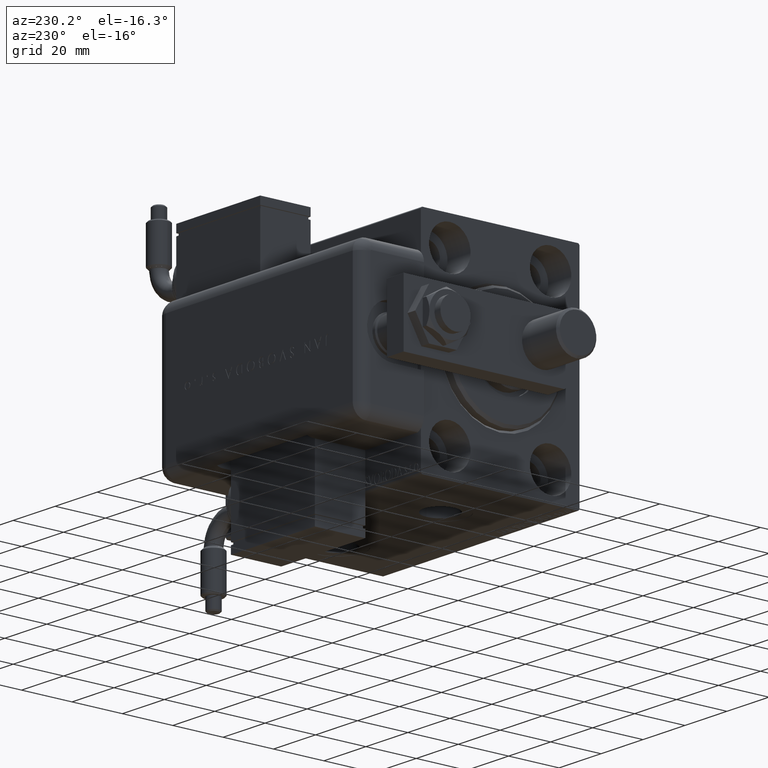
[diagram: clean part render]
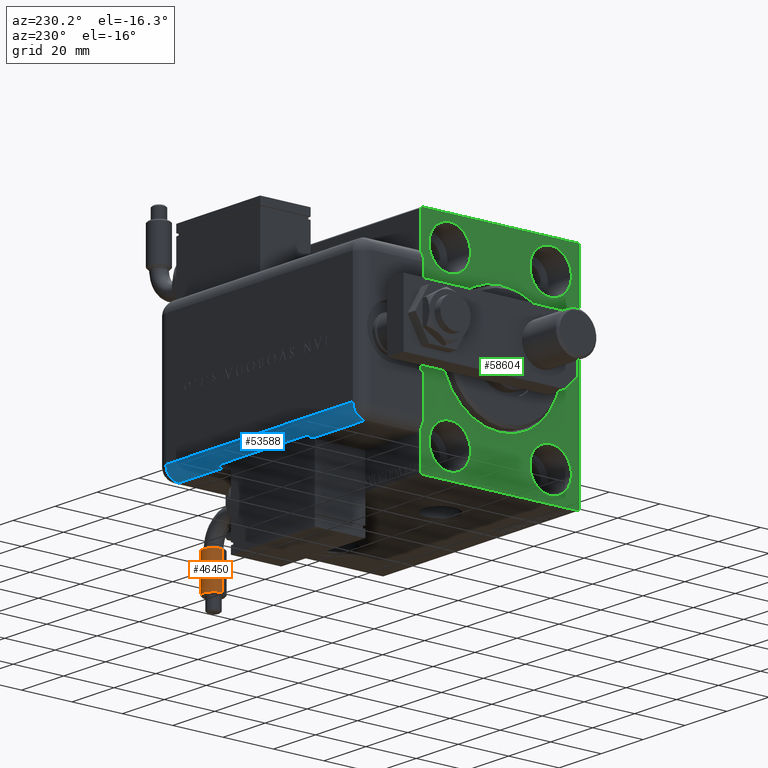
[diagram: same view with three faces highlighted in distinct colors, each labeled with its STEP entity id]
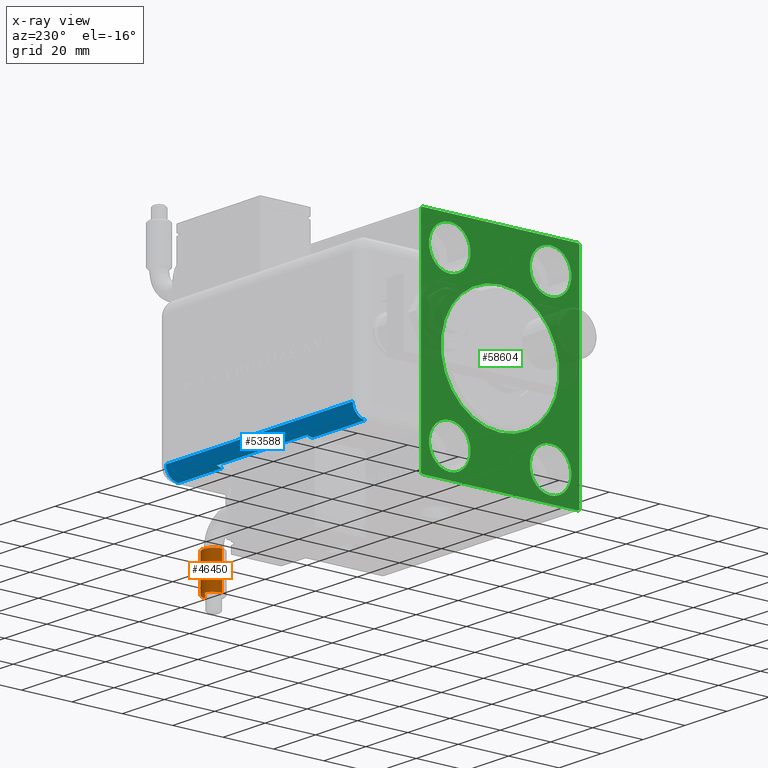
[diagram: x-ray of the same camera — body ghosted, the three highlighted faces saturated]
A machine part, auxiliary view with three faces highlighted in distinct colors.
The next image is the same camera in x-ray (body ghosted, the three faces saturated) — at least one of them is partly hidden behind the body in this view.
Their STEP definitions:

[orange] entity #46450 — the highlighted cylindrical surface (edge-blend (fillet) strip) has radius 4 mm, axis along (0, 0, 1).
#979 = VECTOR ( 'NONE', #33367, 1000.000000000000114 ) ;
#1163 = VECTOR ( 'NONE', #17783, 1000.000000000000114 ) ;
#4042 = CARTESIAN_POINT ( 'NONE',  ( -36.25911726071100105, -24.50725228524562738, 4.898587196589407898E-16 ) ) ;
#4347 = LINE ( 'NONE', #4042, #1163 ) ;
#4790 = CARTESIAN_POINT ( 'NONE',  ( -44.25912096167365917, -24.00731150416889648, 0.000000000000000000 ) ) ;
#5531 = VERTEX_POINT ( 'NONE', #4790 ) ;
#6105 = EDGE_LOOP ( 'NONE', ( #39704, #38530, #15742, #48672 ) ) ;
#6633 = EDGE_CURVE ( 'NONE', #5531, #32824, #41706, .T. ) ;
#6852 = CARTESIAN_POINT ( 'NONE',  ( -40.25922459487507155, -10.00728189509763411, 0.000000000000000000 ) ) ;
#11316 = VERTEX_POINT ( 'NONE', #23168 ) ;
#14317 = LINE ( 'NONE', #17760, #979 ) ;
#15742 = ORIENTED_EDGE ( 'NONE', *, *, #18131, .T. ) ;
#17760 = CARTESIAN_POINT ( 'NONE',  ( -44.25911726049180572, -24.50731150415523629, 0.000000000000000000 ) ) ;
#17783 = DIRECTION ( 'NONE',  ( -7.402363701086711600E-06, 0.9999999999726024713, -0.000000000000000000 ) ) ;
#18131 = EDGE_CURVE ( 'NONE', #33545, #11316, #25160, .T. ) ;
#19700 = DIRECTION ( 'NONE',  ( -7.402363694230904005E-06, 0.9999999999726025823, 0.000000000000000000 ) ) ;
#20299 = EDGE_CURVE ( 'NONE', #32824, #33545, #4347, .T. ) ;
#23168 = CARTESIAN_POINT ( 'NONE',  ( -44.25922459476547033, -10.00731150455246699, 0.000000000000000000 ) ) ;
#23446 = CARTESIAN_POINT ( 'NONE',  ( -36.25922459498466566, -10.00725228564280300, 4.898587196589407898E-16 ) ) ;
#23595 = DIRECTION ( 'NONE',  ( -7.402363701086712447E-06, 0.9999999999726025823, -0.000000000000000000 ) ) ;
#25160 = CIRCLE ( 'NONE', #56069, 3.999999999999993339 ) ;
#25901 = DIRECTION ( 'NONE',  ( 0.9999999999726025823, 7.402363708108884937E-06, 0.000000000000000000 ) ) ;
#29673 = DIRECTION ( 'NONE',  ( 0.9999999999726025823, 7.402363694231097129E-06, 0.000000000000000000 ) ) ;
#31727 = CARTESIAN_POINT ( 'NONE',  ( -40.25911726060140694, -24.50728189470043006, 0.000000000000000000 ) ) ;
#32646 = FACE_OUTER_BOUND ( 'NONE', #6105, .T. ) ;
#32824 = VERTEX_POINT ( 'NONE', #41100 ) ;
#32961 = CYLINDRICAL_SURFACE ( 'NONE', #42553, 3.999999999999993339 ) ;
#33367 = DIRECTION ( 'NONE',  ( -7.402363701086711600E-06, 0.9999999999726024713, -0.000000000000000000 ) ) ;
#33545 = VERTEX_POINT ( 'NONE', #23446 ) ;
#36178 = DIRECTION ( 'NONE',  ( 7.402363708109615079E-06, -0.9999999999726024713, -0.000000000000000000 ) ) ;
#38530 = ORIENTED_EDGE ( 'NONE', *, *, #20299, .T. ) ;
#39704 = ORIENTED_EDGE ( 'NONE', *, *, #6633, .T. ) ;
#41100 = CARTESIAN_POINT ( 'NONE',  ( -36.25912096189284739, -24.00725228525934440, 4.898587196589407898E-16 ) ) ;
#41706 = CIRCLE ( 'NONE', #47687, 3.999999999999993339 ) ;
#42553 = AXIS2_PLACEMENT_3D ( 'NONE', #31727, #23595, #61064 ) ;
#46450 = ADVANCED_FACE ( 'NONE', ( #32646 ), #32961, .T. ) ;
#47687 = AXIS2_PLACEMENT_3D ( 'NONE', #53399, #19700, #29673 ) ;
#48672 = ORIENTED_EDGE ( 'NONE', *, *, #59235, .F. ) ;
#53399 = CARTESIAN_POINT ( 'NONE',  ( -40.25912096178325328, -24.00728189471412222, 0.000000000000000000 ) ) ;
#56069 = AXIS2_PLACEMENT_3D ( 'NONE', #6852, #36178, #25901 ) ;
#59235 = EDGE_CURVE ( 'NONE', #5531, #11316, #14317, .T. ) ;
#61064 = DIRECTION ( 'NONE',  ( -0.9999999999726025823, -7.402363701169991033E-06, 0.000000000000000000 ) ) ;

[blue] entity #53588 — the highlighted cylindrical surface (edge-blend (fillet) strip) has radius 5 mm, axis along (1, -0, -0).
#1024 = VERTEX_POINT ( 'NONE', #43393 ) ;
#2253 = DIRECTION ( 'NONE',  ( -0.000000000000000000, -0.000000000000000000, 1.000000000000000000 ) ) ;
#5525 = DIRECTION ( 'NONE',  ( -0.000000000000000000, -0.000000000000000000, 1.000000000000000000 ) ) ;
#5794 = AXIS2_PLACEMENT_3D ( 'NONE', #12651, #12036, #55114 ) ;
#6598 = DIRECTION ( 'NONE',  ( 0.000000000000000000, -0.000000000000000000, -1.000000000000000000 ) ) ;
#7021 = VECTOR ( 'NONE', #35954, 1000.000000000000000 ) ;
#7842 = AXIS2_PLACEMENT_3D ( 'NONE', #25027, #6598, #54356 ) ;
#10909 = ORIENTED_EDGE ( 'NONE', *, *, #13045, .T. ) ;
#11496 = CARTESIAN_POINT ( 'NONE',  ( -28.99999999999999645, 20.79999999999998295, 94.00000000000000000 ) ) ;
#12036 = DIRECTION ( 'NONE',  ( 0.000000000000000000, 0.000000000000000000, -1.000000000000000000 ) ) ;
#12112 = CARTESIAN_POINT ( 'NONE',  ( -23.99999999999999645, 25.79999999999998295, 94.00000000000000000 ) ) ;
#12559 = CARTESIAN_POINT ( 'NONE',  ( -23.99999999999999645, 25.79999999999998295, 5.000000000000004441 ) ) ;
#12651 = CARTESIAN_POINT ( 'NONE',  ( -23.99999999999999645, 20.79999999999998295, 94.00000000000000000 ) ) ;
#12736 = DIRECTION ( 'NONE',  ( -0.000000000000000000, -0.000000000000000000, 1.000000000000000000 ) ) ;
#13045 = EDGE_CURVE ( 'NONE', #27261, #56136, #21987, .T. ) ;
#13827 = VECTOR ( 'NONE', #12736, 1000.000000000000000 ) ;
#13894 = EDGE_CURVE ( 'NONE', #1024, #56136, #42111, .T. ) ;
#14936 = EDGE_CURVE ( 'NONE', #34326, #39249, #50965, .T. ) ;
#16082 = CARTESIAN_POINT ( 'NONE',  ( -28.48998886412872267, 22.99999999999998934, 26.00000000000001066 ) ) ;
#16457 = CARTESIAN_POINT ( 'NONE',  ( -23.99999999999999645, 20.79999999999998295, 26.00000000000001066 ) ) ;
#21207 = ORIENTED_EDGE ( 'NONE', *, *, #51318, .F. ) ;
#21987 = CIRCLE ( 'NONE', #37962, 5.000000000000000888 ) ;
#22281 = ORIENTED_EDGE ( 'NONE', *, *, #54890, .F. ) ;
#22839 = ORIENTED_EDGE ( 'NONE', *, *, #14936, .F. ) ;
#24644 = AXIS2_PLACEMENT_3D ( 'NONE', #16457, #58949, #54849 ) ;
#24785 = CIRCLE ( 'NONE', #7842, 5.000000000000000888 ) ;
#25027 = CARTESIAN_POINT ( 'NONE',  ( -23.99999999999999645, 20.79999999999998295, 69.00000000000000000 ) ) ;
#25991 = DIRECTION ( 'NONE',  ( -1.000000000000000000, 0.000000000000000000, 0.000000000000000000 ) ) ;
#27261 = VERTEX_POINT ( 'NONE', #12559 ) ;
#32047 = CARTESIAN_POINT ( 'NONE',  ( -23.99999999999999645, 25.79999999999998295, 94.00000000000000000 ) ) ;
#32780 = ORIENTED_EDGE ( 'NONE', *, *, #44868, .F. ) ;
#33252 = CARTESIAN_POINT ( 'NONE',  ( -28.99999999999999645, 20.79999999999998295, 94.00000000000000000 ) ) ;
#34326 = VERTEX_POINT ( 'NONE', #32047 ) ;
#35825 = CARTESIAN_POINT ( 'NONE',  ( -28.48998886412872267, 22.99999999999998934, 94.00000000000000000 ) ) ;
#35954 = DIRECTION ( 'NONE',  ( 0.000000000000000000, 0.000000000000000000, -1.000000000000000000 ) ) ;
#36432 = LINE ( 'NONE', #35825, #56431 ) ;
#37364 = ORIENTED_EDGE ( 'NONE', *, *, #13894, .F. ) ;
#37962 = AXIS2_PLACEMENT_3D ( 'NONE', #38636, #5525, #47716 ) ;
#38358 = EDGE_CURVE ( 'NONE', #59353, #1024, #47569, .T. ) ;
#38636 = CARTESIAN_POINT ( 'NONE',  ( -23.99999999999999645, 20.79999999999998295, 5.000000000000004441 ) ) ;
#39249 = VERTEX_POINT ( 'NONE', #11496 ) ;
#40188 = VERTEX_POINT ( 'NONE', #60579 ) ;
#42111 = LINE ( 'NONE', #56452, #7021 ) ;
#43393 = CARTESIAN_POINT ( 'NONE',  ( -28.99999999999999645, 20.79999999999998295, 26.00000000000001066 ) ) ;
#44390 = CARTESIAN_POINT ( 'NONE',  ( -28.99999999999999645, 20.79999999999998295, 69.00000000000000000 ) ) ;
#44868 = EDGE_CURVE ( 'NONE', #40188, #59353, #36432, .T. ) ;
#45979 = AXIS2_PLACEMENT_3D ( 'NONE', #55295, #2253, #25991 ) ;
#47569 = CIRCLE ( 'NONE', #24644, 5.000000000000000888 ) ;
#47619 = LINE ( 'NONE', #33252, #47756 ) ;
#47716 = DIRECTION ( 'NONE',  ( -1.000000000000000000, 0.000000000000000000, 0.000000000000000000 ) ) ;
#47756 = VECTOR ( 'NONE', #52605, 1000.000000000000000 ) ;
#48088 = ORIENTED_EDGE ( 'NONE', *, *, #38358, .F. ) ;
#49016 = CARTESIAN_POINT ( 'NONE',  ( -28.99999999999999645, 20.79999999999998295, 5.000000000000004441 ) ) ;
#50965 = CIRCLE ( 'NONE', #45979, 5.000000000000000888 ) ;
#51318 = EDGE_CURVE ( 'NONE', #52713, #40188, #24785, .T. ) ;
#52605 = DIRECTION ( 'NONE',  ( 0.000000000000000000, 0.000000000000000000, -1.000000000000000000 ) ) ;
#52713 = VERTEX_POINT ( 'NONE', #44390 ) ;
#53588 = ADVANCED_FACE ( 'NONE', ( #55422 ), #54504, .T. ) ;
#54356 = DIRECTION ( 'NONE',  ( 1.000000000000000000, 0.000000000000000000, 0.000000000000000000 ) ) ;
#54504 = CYLINDRICAL_SURFACE ( 'NONE', #5794, 5.000000000000000888 ) ;
#54848 = DIRECTION ( 'NONE',  ( 0.000000000000000000, 0.000000000000000000, -1.000000000000000000 ) ) ;
#54849 = DIRECTION ( 'NONE',  ( -1.000000000000000000, 4.163336342344336238E-15, 0.000000000000000000 ) ) ;
#54890 = EDGE_CURVE ( 'NONE', #39249, #52713, #47619, .T. ) ;
#54893 = EDGE_LOOP ( 'NONE', ( #48088, #32780, #21207, #22281, #22839, #56512, #10909, #37364 ) ) ;
#55114 = DIRECTION ( 'NONE',  ( -1.000000000000000000, 0.000000000000000000, 0.000000000000000000 ) ) ;
#55295 = CARTESIAN_POINT ( 'NONE',  ( -23.99999999999999645, 20.79999999999998295, 94.00000000000000000 ) ) ;
#55306 = EDGE_CURVE ( 'NONE', #27261, #34326, #60195, .T. ) ;
#55422 = FACE_OUTER_BOUND ( 'NONE', #54893, .T. ) ;
#56136 = VERTEX_POINT ( 'NONE', #49016 ) ;
#56431 = VECTOR ( 'NONE', #54848, 1000.000000000000000 ) ;
#56452 = CARTESIAN_POINT ( 'NONE',  ( -28.99999999999999645, 20.79999999999998295, 94.00000000000000000 ) ) ;
#56512 = ORIENTED_EDGE ( 'NONE', *, *, #55306, .F. ) ;
#58949 = DIRECTION ( 'NONE',  ( -0.000000000000000000, -0.000000000000000000, 1.000000000000000000 ) ) ;
#59353 = VERTEX_POINT ( 'NONE', #16082 ) ;
#60195 = LINE ( 'NONE', #12112, #13827 ) ;
#60579 = CARTESIAN_POINT ( 'NONE',  ( -28.48998886412872267, 22.99999999999998934, 69.00000000000000000 ) ) ;

[green] entity #58604 — the highlighted planar face has unit normal (1, 0, 0).
#593 = VECTOR ( 'NONE', #11353, 1000.000000000000000 ) ;
#620 = VERTEX_POINT ( 'NONE', #11962 ) ;
#738 = CARTESIAN_POINT ( 'NONE',  ( 0.000000000000000000, -31.50000000000000000, -42.50000000000000711 ) ) ;
#2513 = CARTESIAN_POINT ( 'NONE',  ( 0.000000000000000000, 2.877919977996282293E-15, -23.50000000000001776 ) ) ;
#2928 = DIRECTION ( 'NONE',  ( 0.000000000000000000, 0.000000000000000000, -1.000000000000000000 ) ) ;
#2935 = FACE_BOUND ( 'NONE', #41855, .T. ) ;
#3332 = VERTEX_POINT ( 'NONE', #26093 ) ;
#3372 = EDGE_CURVE ( 'NONE', #620, #19974, #33469, .T. ) ;
#3816 = ORIENTED_EDGE ( 'NONE', *, *, #30631, .F. ) ;
#4709 = VERTEX_POINT ( 'NONE', #9151 ) ;
#5051 = DIRECTION ( 'NONE',  ( 0.000000000000000000, 0.000000000000000000, 1.000000000000000000 ) ) ;
#5349 = DIRECTION ( 'NONE',  ( -1.000000000000000000, 0.000000000000000000, 0.000000000000000000 ) ) ;
#5362 = DIRECTION ( 'NONE',  ( 1.000000000000000000, 0.000000000000000000, 0.000000000000000000 ) ) ;
#5565 = CIRCLE ( 'NONE', #38480, 8.249999999999992895 ) ;
#5720 = CARTESIAN_POINT ( 'NONE',  ( 0.000000000000000000, -19.99999999999999645, 31.50000000000000000 ) ) ;
#6385 = CIRCLE ( 'NONE', #61257, 23.50000000000001776 ) ;
#6431 = CARTESIAN_POINT ( 'NONE',  ( 0.000000000000000000, 31.00000000000000000, 42.50000000000000711 ) ) ;
#6921 = CIRCLE ( 'NONE', #23898, 8.250000000000000000 ) ;
#7566 = CIRCLE ( 'NONE', #39489, 8.250000000000000000 ) ;
#7672 = VERTEX_POINT ( 'NONE', #27808 ) ;
#7925 = DIRECTION ( 'NONE',  ( 0.000000000000000000, 0.000000000000000000, -1.000000000000000000 ) ) ;
#8193 = CARTESIAN_POINT ( 'NONE',  ( 0.000000000000000000, -30.99999999999998579, 42.49999999999999289 ) ) ;
#8495 = ORIENTED_EDGE ( 'NONE', *, *, #51889, .T. ) ;
#9151 = CARTESIAN_POINT ( 'NONE',  ( 0.000000000000000000, 31.50000000000001421, -42.00000000000003553 ) ) ;
#9443 = DIRECTION ( 'NONE',  ( 0.000000000000000000, 0.000000000000000000, -1.000000000000000000 ) ) ;
#10360 = EDGE_CURVE ( 'NONE', #4709, #7672, #26083, .T. ) ;
#10693 = VECTOR ( 'NONE', #37947, 1000.000000000000114 ) ;
#10896 = CARTESIAN_POINT ( 'NONE',  ( 0.000000000000000000, -20.00000000000000355, -39.74999999999999289 ) ) ;
#10910 = DIRECTION ( 'NONE',  ( 0.000000000000000000, 0.000000000000000000, 1.000000000000000000 ) ) ;
#11040 = LINE ( 'NONE', #39147, #593 ) ;
#11353 = DIRECTION ( 'NONE',  ( 0.000000000000000000, -1.000000000000000000, -2.202823461557850341E-16 ) ) ;
#11778 = VERTEX_POINT ( 'NONE', #6431 ) ;
#11823 = VERTEX_POINT ( 'NONE', #20171 ) ;
#11938 = DIRECTION ( 'NONE',  ( 0.000000000000000000, 0.000000000000000000, 1.000000000000000000 ) ) ;
#11962 = CARTESIAN_POINT ( 'NONE',  ( 0.000000000000000000, -31.00000000000002842, -42.50000000000000711 ) ) ;
#11992 = FACE_BOUND ( 'NONE', #57343, .T. ) ;
#14750 = CARTESIAN_POINT ( 'NONE',  ( 0.000000000000000000, 20.00000000000000355, 31.50000000000000000 ) ) ;
#15355 = DIRECTION ( 'NONE',  ( 0.000000000000000000, 0.000000000000000000, 1.000000000000000000 ) ) ;
#15438 = EDGE_CURVE ( 'NONE', #31806, #28665, #48026, .T. ) ;
#15818 = AXIS2_PLACEMENT_3D ( 'NONE', #14750, #43483, #15355 ) ;
#16073 = CARTESIAN_POINT ( 'NONE',  ( 0.000000000000000000, 0.000000000000000000, 23.50000000000001776 ) ) ;
#16151 = CARTESIAN_POINT ( 'NONE',  ( 0.000000000000000000, 20.00000000000000355, 23.25000000000000355 ) ) ;
#16298 = EDGE_LOOP ( 'NONE', ( #3816, #59980 ) ) ;
#16507 = VERTEX_POINT ( 'NONE', #29318 ) ;
#17906 = LINE ( 'NONE', #45719, #34592 ) ;
#18984 = ORIENTED_EDGE ( 'NONE', *, *, #10360, .F. ) ;
#19172 = DIRECTION ( 'NONE',  ( -1.000000000000000000, 0.000000000000000000, 0.000000000000000000 ) ) ;
#19189 = EDGE_CURVE ( 'NONE', #28665, #31806, #35200, .T. ) ;
#19358 = CIRCLE ( 'NONE', #26311, 8.249999999999992895 ) ;
#19504 = LINE ( 'NONE', #32945, #10693 ) ;
#19974 = VERTEX_POINT ( 'NONE', #33839 ) ;
#20171 = CARTESIAN_POINT ( 'NONE',  ( 0.000000000000000000, -31.50000000000000000, 41.99999999999997868 ) ) ;
#20579 = DIRECTION ( 'NONE',  ( -1.000000000000000000, 0.000000000000000000, 0.000000000000000000 ) ) ;
#20720 = DIRECTION ( 'NONE',  ( 0.000000000000000000, 0.000000000000000000, -1.000000000000000000 ) ) ;
#21333 = DIRECTION ( 'NONE',  ( 1.000000000000000000, 0.000000000000000000, 0.000000000000000000 ) ) ;
#22000 = DIRECTION ( 'NONE',  ( 0.000000000000000000, -1.632680918566406300E-16, 1.000000000000000000 ) ) ;
#22060 = DIRECTION ( 'NONE',  ( -1.000000000000000000, 0.000000000000000000, 0.000000000000000000 ) ) ;
#22146 = ORIENTED_EDGE ( 'NONE', *, *, #26378, .F. ) ;
#23898 = AXIS2_PLACEMENT_3D ( 'NONE', #45354, #46277, #11938 ) ;
#24458 = LINE ( 'NONE', #738, #36639 ) ;
#24693 = CARTESIAN_POINT ( 'NONE',  ( 0.000000000000000000, -19.99999999999999645, 23.25000000000000355 ) ) ;
#24715 = VERTEX_POINT ( 'NONE', #49903 ) ;
#25078 = DIRECTION ( 'NONE',  ( 0.000000000000000000, 1.000000000000000000, 0.000000000000000000 ) ) ;
#26083 = LINE ( 'NONE', #26689, #41796 ) ;
#26093 = CARTESIAN_POINT ( 'NONE',  ( 0.000000000000000000, 19.99999999999999645, -39.74999999999999289 ) ) ;
#26311 = AXIS2_PLACEMENT_3D ( 'NONE', #51121, #41436, #60475 ) ;
#26378 = EDGE_CURVE ( 'NONE', #43792, #31312, #19358, .T. ) ;
#26689 = CARTESIAN_POINT ( 'NONE',  ( 0.000000000000000000, 31.50000000000001421, -42.50000000000000711 ) ) ;
#27808 = CARTESIAN_POINT ( 'NONE',  ( 0.000000000000000000, 31.50000000000000000, 41.99999999999999289 ) ) ;
#28049 = AXIS2_PLACEMENT_3D ( 'NONE', #39953, #20579, #10910 ) ;
#28165 = DIRECTION ( 'NONE',  ( -0.000000000000000000, -0.7071067811865376918, 0.7071067811865573427 ) ) ;
#28665 = VERTEX_POINT ( 'NONE', #28876 ) ;
#28876 = CARTESIAN_POINT ( 'NONE',  ( 0.000000000000000000, -20.00000000000000355, -23.24999999999999289 ) ) ;
#29318 = CARTESIAN_POINT ( 'NONE',  ( 0.000000000000000000, 19.99999999999999645, -23.24999999999999289 ) ) ;
#30631 = EDGE_CURVE ( 'NONE', #54821, #58034, #5565, .T. ) ;
#30877 = EDGE_LOOP ( 'NONE', ( #33643, #58502 ) ) ;
#30979 = DIRECTION ( 'NONE',  ( 0.000000000000000000, 0.000000000000000000, 1.000000000000000000 ) ) ;
#31044 = PLANE ( 'NONE',  #60792 ) ;
#31218 = EDGE_CURVE ( 'NONE', #11778, #39851, #11040, .T. ) ;
#31312 = VERTEX_POINT ( 'NONE', #34459 ) ;
#31806 = VERTEX_POINT ( 'NONE', #10896 ) ;
#32945 = CARTESIAN_POINT ( 'NONE',  ( 0.000000000000000000, -31.50000000000000000, 41.99999999999997868 ) ) ;
#33469 = LINE ( 'NONE', #38463, #38580 ) ;
#33643 = ORIENTED_EDGE ( 'NONE', *, *, #39930, .T. ) ;
#33839 = CARTESIAN_POINT ( 'NONE',  ( 0.000000000000000000, -31.50000000000000000, -42.00000000000002132 ) ) ;
#34459 = CARTESIAN_POINT ( 'NONE',  ( 0.000000000000000000, 20.00000000000000355, 39.74999999999999289 ) ) ;
#34592 = VECTOR ( 'NONE', #2928, 1000.000000000000000 ) ;
#35200 = CIRCLE ( 'NONE', #45179, 8.250000000000000000 ) ;
#35280 = EDGE_CURVE ( 'NONE', #3332, #16507, #7566, .T. ) ;
#35672 = CARTESIAN_POINT ( 'NONE',  ( 0.000000000000000000, -20.00000000000000355, -31.49999999999999289 ) ) ;
#35740 = FACE_BOUND ( 'NONE', #54225, .T. ) ;
#36345 = DIRECTION ( 'NONE',  ( 1.000000000000000000, 0.000000000000000000, 0.000000000000000000 ) ) ;
#36631 = AXIS2_PLACEMENT_3D ( 'NONE', #55028, #21333, #20720 ) ;
#36639 = VECTOR ( 'NONE', #25078, 1000.000000000000000 ) ;
#37109 = LINE ( 'NONE', #57076, #50507 ) ;
#37947 = DIRECTION ( 'NONE',  ( -0.000000000000000000, 0.7071067811865474617, 0.7071067811865474617 ) ) ;
#38463 = CARTESIAN_POINT ( 'NONE',  ( 0.000000000000000000, -31.00000000000002842, -42.50000000000000711 ) ) ;
#38480 = AXIS2_PLACEMENT_3D ( 'NONE', #42539, #5349, #5051 ) ;
#38580 = VECTOR ( 'NONE', #28165, 1000.000000000000114 ) ;
#38768 = CARTESIAN_POINT ( 'NONE',  ( 0.000000000000000000, 0.000000000000000000, 0.000000000000000000 ) ) ;
#39147 = CARTESIAN_POINT ( 'NONE',  ( 0.000000000000000000, 31.50000000000000000, 42.50000000000000711 ) ) ;
#39489 = AXIS2_PLACEMENT_3D ( 'NONE', #51103, #22060, #50479 ) ;
#39724 = EDGE_CURVE ( 'NONE', #52759, #56756, #55566, .T. ) ;
#39851 = VERTEX_POINT ( 'NONE', #8193 ) ;
#39873 = ORIENTED_EDGE ( 'NONE', *, *, #19189, .F. ) ;
#39930 = EDGE_CURVE ( 'NONE', #56756, #52759, #6385, .T. ) ;
#39953 = CARTESIAN_POINT ( 'NONE',  ( 0.000000000000000000, -20.00000000000000355, -31.49999999999999289 ) ) ;
#40173 = CARTESIAN_POINT ( 'NONE',  ( 0.000000000000000000, -19.99999999999999645, 39.74999999999999289 ) ) ;
#41035 = FACE_OUTER_BOUND ( 'NONE', #60136, .T. ) ;
#41436 = DIRECTION ( 'NONE',  ( -1.000000000000000000, 0.000000000000000000, 0.000000000000000000 ) ) ;
#41796 = VECTOR ( 'NONE', #22000, 1000.000000000000000 ) ;
#41855 = EDGE_LOOP ( 'NONE', ( #50688, #22146 ) ) ;
#42539 = CARTESIAN_POINT ( 'NONE',  ( 0.000000000000000000, -19.99999999999999645, 31.50000000000000000 ) ) ;
#42894 = LINE ( 'NONE', #57233, #53480 ) ;
#43046 = ORIENTED_EDGE ( 'NONE', *, *, #45830, .T. ) ;
#43483 = DIRECTION ( 'NONE',  ( -1.000000000000000000, 0.000000000000000000, 0.000000000000000000 ) ) ;
#43792 = VERTEX_POINT ( 'NONE', #16151 ) ;
#44136 = DIRECTION ( 'NONE',  ( 0.000000000000000000, 0.000000000000000000, 1.000000000000000000 ) ) ;
#45179 = AXIS2_PLACEMENT_3D ( 'NONE', #35672, #54700, #30979 ) ;
#45354 = CARTESIAN_POINT ( 'NONE',  ( 0.000000000000000000, 19.99999999999999645, -31.49999999999999289 ) ) ;
#45615 = AXIS2_PLACEMENT_3D ( 'NONE', #5720, #19172, #44136 ) ;
#45719 = CARTESIAN_POINT ( 'NONE',  ( 0.000000000000000000, -31.50000000000000000, 42.49999999999999289 ) ) ;
#45830 = EDGE_CURVE ( 'NONE', #11778, #7672, #42894, .T. ) ;
#45880 = ORIENTED_EDGE ( 'NONE', *, *, #57829, .F. ) ;
#46171 = EDGE_CURVE ( 'NONE', #4709, #24715, #37109, .T. ) ;
#46277 = DIRECTION ( 'NONE',  ( -1.000000000000000000, 0.000000000000000000, 0.000000000000000000 ) ) ;
#46910 = EDGE_CURVE ( 'NONE', #11823, #19974, #17906, .T. ) ;
#48026 = CIRCLE ( 'NONE', #28049, 8.250000000000000000 ) ;
#48560 = ORIENTED_EDGE ( 'NONE', *, *, #46910, .F. ) ;
#48781 = EDGE_CURVE ( 'NONE', #58034, #54821, #56569, .T. ) ;
#48854 = EDGE_CURVE ( 'NONE', #620, #24715, #24458, .T. ) ;
#49903 = CARTESIAN_POINT ( 'NONE',  ( 0.000000000000000000, 31.00000000000002842, -42.50000000000000711 ) ) ;
#50095 = CARTESIAN_POINT ( 'NONE',  ( 0.000000000000000000, 0.000000000000000000, 0.000000000000000000 ) ) ;
#50479 = DIRECTION ( 'NONE',  ( 0.000000000000000000, 0.000000000000000000, 1.000000000000000000 ) ) ;
#50507 = VECTOR ( 'NONE', #51786, 1000.000000000000114 ) ;
#50688 = ORIENTED_EDGE ( 'NONE', *, *, #55739, .F. ) ;
#51103 = CARTESIAN_POINT ( 'NONE',  ( 0.000000000000000000, 19.99999999999999645, -31.49999999999999289 ) ) ;
#51121 = CARTESIAN_POINT ( 'NONE',  ( 0.000000000000000000, 20.00000000000000355, 31.50000000000000000 ) ) ;
#51282 = ORIENTED_EDGE ( 'NONE', *, *, #46171, .T. ) ;
#51786 = DIRECTION ( 'NONE',  ( 0.000000000000000000, -0.7071067811865573427, -0.7071067811865376918 ) ) ;
#51889 = EDGE_CURVE ( 'NONE', #11823, #39851, #19504, .T. ) ;
#52559 = DIRECTION ( 'NONE',  ( -0.000000000000000000, 0.7071067811865376918, -0.7071067811865574537 ) ) ;
#52759 = VERTEX_POINT ( 'NONE', #2513 ) ;
#52916 = ORIENTED_EDGE ( 'NONE', *, *, #15438, .F. ) ;
#53138 = ORIENTED_EDGE ( 'NONE', *, *, #3372, .T. ) ;
#53480 = VECTOR ( 'NONE', #52559, 999.9999999999998863 ) ;
#54225 = EDGE_LOOP ( 'NONE', ( #45880, #59123 ) ) ;
#54700 = DIRECTION ( 'NONE',  ( -1.000000000000000000, 0.000000000000000000, 0.000000000000000000 ) ) ;
#54764 = FACE_BOUND ( 'NONE', #16298, .T. ) ;
#54821 = VERTEX_POINT ( 'NONE', #40173 ) ;
#55028 = CARTESIAN_POINT ( 'NONE',  ( 0.000000000000000000, 0.000000000000000000, 0.000000000000000000 ) ) ;
#55566 = CIRCLE ( 'NONE', #36631, 23.50000000000001776 ) ;
#55739 = EDGE_CURVE ( 'NONE', #31312, #43792, #57685, .T. ) ;
#56569 = CIRCLE ( 'NONE', #45615, 8.249999999999992895 ) ;
#56756 = VERTEX_POINT ( 'NONE', #16073 ) ;
#57076 = CARTESIAN_POINT ( 'NONE',  ( 0.000000000000000000, 31.50000000000001421, -42.00000000000003553 ) ) ;
#57233 = CARTESIAN_POINT ( 'NONE',  ( 0.000000000000000000, 31.00000000000000000, 42.50000000000000711 ) ) ;
#57343 = EDGE_LOOP ( 'NONE', ( #39873, #52916 ) ) ;
#57685 = CIRCLE ( 'NONE', #15818, 8.249999999999992895 ) ;
#57829 = EDGE_CURVE ( 'NONE', #16507, #3332, #6921, .T. ) ;
#58034 = VERTEX_POINT ( 'NONE', #24693 ) ;
#58502 = ORIENTED_EDGE ( 'NONE', *, *, #39724, .T. ) ;
#58604 = ADVANCED_FACE ( 'NONE', ( #59464, #35740, #54764, #2935, #11992, #41035 ), #31044, .F. ) ;
#59123 = ORIENTED_EDGE ( 'NONE', *, *, #35280, .F. ) ;
#59247 = ORIENTED_EDGE ( 'NONE', *, *, #31218, .F. ) ;
#59464 = FACE_BOUND ( 'NONE', #30877, .T. ) ;
#59980 = ORIENTED_EDGE ( 'NONE', *, *, #48781, .F. ) ;
#60136 = EDGE_LOOP ( 'NONE', ( #48560, #8495, #59247, #43046, #18984, #51282, #60901, #53138 ) ) ;
#60475 = DIRECTION ( 'NONE',  ( 0.000000000000000000, 0.000000000000000000, 1.000000000000000000 ) ) ;
#60792 = AXIS2_PLACEMENT_3D ( 'NONE', #50095, #36345, #7925 ) ;
#60901 = ORIENTED_EDGE ( 'NONE', *, *, #48854, .F. ) ;
#61257 = AXIS2_PLACEMENT_3D ( 'NONE', #38768, #5362, #9443 ) ;